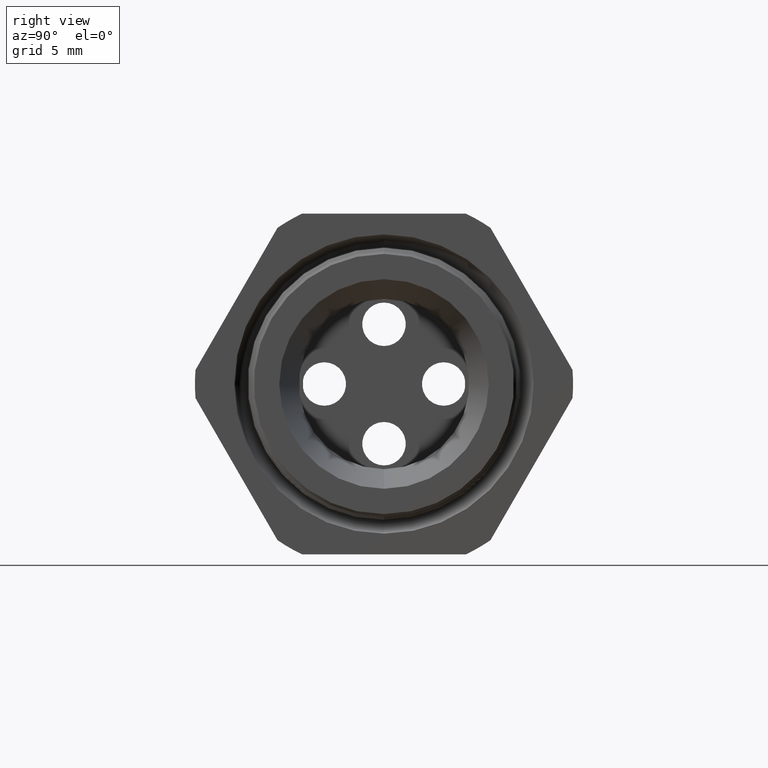
[diagram: clean part render]
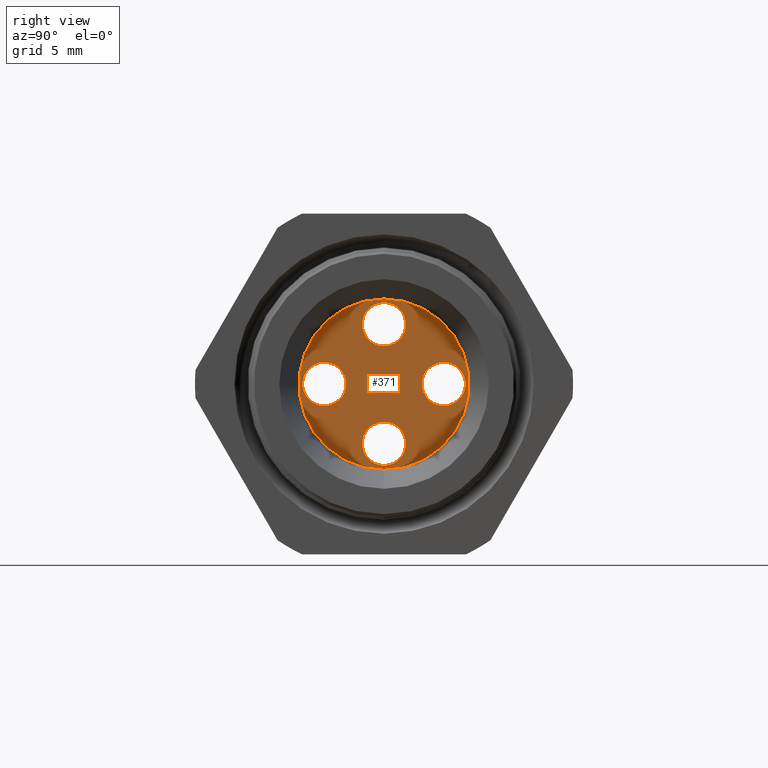
[diagram: same view with one face highlighted and labeled with its STEP entity id]
A machine part, right view. The second image highlights one B-rep face of the part: STEP entity #371.
In plain terms, the highlighted planar face has unit normal (-1, 0, 0).
Its self-contained STEP definition (entity closure, byte-faithful):
#358 = EDGE_CURVE ( 'NONE', #438, #445, #2435, .T. ) ;
#359 = ORIENTED_EDGE ( 'NONE', *, *, #466, .T. ) ;
#360 = EDGE_LOOP ( 'NONE', ( #361, #425 ) ) ;
#361 = ORIENTED_EDGE ( 'NONE', *, *, #424, .T. ) ;
#362 = ORIENTED_EDGE ( 'NONE', *, *, #367, .T. ) ;
#363 = ORIENTED_EDGE ( 'NONE', *, *, #514, .T. ) ;
#364 = EDGE_LOOP ( 'NONE', ( #431, #432 ) ) ;
#365 = ORIENTED_EDGE ( 'NONE', *, *, #366, .T. ) ;
#366 = EDGE_CURVE ( 'NONE', #435, #434, #2429, .T. ) ;
#367 = EDGE_CURVE ( 'NONE', #468, #467, #2490, .T. ) ;
#368 = ORIENTED_EDGE ( 'NONE', *, *, #358, .T. ) ;
#371 = ADVANCED_FACE ( 'NONE', ( #2481, #2480, #2479, #2478, #2477 ), #2476, .F. ) ;
#379 = EDGE_CURVE ( 'NONE', #393, #391, #2459, .T. ) ;
#388 = EDGE_CURVE ( 'NONE', #391, #393, #2511, .T. ) ;
#391 = VERTEX_POINT ( 'NONE', #2506 ) ;
#393 = VERTEX_POINT ( 'NONE', #2505 ) ;
#396 = EDGE_LOOP ( 'NONE', ( #368, #433 ) ) ;
#424 = EDGE_CURVE ( 'NONE', #506, #505, #2583, .T. ) ;
#425 = ORIENTED_EDGE ( 'NONE', *, *, #504, .T. ) ;
#426 = EDGE_LOOP ( 'NONE', ( #365, #363 ) ) ;
#430 = EDGE_LOOP ( 'NONE', ( #362, #359 ) ) ;
#431 = ORIENTED_EDGE ( 'NONE', *, *, #388, .F. ) ;
#432 = ORIENTED_EDGE ( 'NONE', *, *, #379, .F. ) ;
#433 = ORIENTED_EDGE ( 'NONE', *, *, #459, .T. ) ;
#434 = VERTEX_POINT ( 'NONE', #2571 ) ;
#435 = VERTEX_POINT ( 'NONE', #2570 ) ;
#438 = VERTEX_POINT ( 'NONE', #2568 ) ;
#445 = VERTEX_POINT ( 'NONE', #2557 ) ;
#459 = EDGE_CURVE ( 'NONE', #445, #438, #2595, .T. ) ;
#466 = EDGE_CURVE ( 'NONE', #467, #468, #2643, .T. ) ;
#467 = VERTEX_POINT ( 'NONE', #2638 ) ;
#468 = VERTEX_POINT ( 'NONE', #2637 ) ;
#504 = EDGE_CURVE ( 'NONE', #505, #506, #2694, .T. ) ;
#505 = VERTEX_POINT ( 'NONE', #2689 ) ;
#506 = VERTEX_POINT ( 'NONE', #2688 ) ;
#514 = EDGE_CURVE ( 'NONE', #434, #435, #2743, .T. ) ;
#1830 = DIRECTION ( 'NONE',  ( 0.0000000000000000000, -1.000000000000000000, 1.047445008332814800E-014 ) ) ;
#2427 = CARTESIAN_POINT ( 'NONE',  ( -1.159999999999999900, 0.0000000000000000000, -0.1647599999999999900 ) ) ;
#2428 = AXIS2_PLACEMENT_3D ( 'NONE', #2427, #2492, #2491 ) ;
#2429 = CIRCLE ( 'NONE', #2428, 0.06000000000000001200 ) ;
#2430 = CARTESIAN_POINT ( 'NONE',  ( -1.159999999999999900, 1.150513597152763700E-015, 0.1647599999999999900 ) ) ;
#2431 = DIRECTION ( 'NONE',  ( 0.0000000000000000000, -1.000000000000000000, 1.047445008332814800E-014 ) ) ;
#2432 = DIRECTION ( 'NONE',  ( -1.000000000000000000, 0.0000000000000000000, 0.0000000000000000000 ) ) ;
#2433 = CARTESIAN_POINT ( 'NONE',  ( -1.159999999999999900, 0.1647599999999999900, -1.725770395729145300E-015 ) ) ;
#2434 = AXIS2_PLACEMENT_3D ( 'NONE', #2433, #2432, #2431 ) ;
#2435 = CIRCLE ( 'NONE', #2434, 0.06000000000000001200 ) ;
#2459 = CIRCLE ( 'NONE', #2524, 0.2349999999999999900 ) ;
#2472 = DIRECTION ( 'NONE',  ( 0.0000000000000000000, 0.0000000000000000000, 1.000000000000000000 ) ) ;
#2473 = DIRECTION ( 'NONE',  ( -1.000000000000000000, 0.0000000000000000000, 0.0000000000000000000 ) ) ;
#2474 = CARTESIAN_POINT ( 'NONE',  ( -1.159999999999999900, 0.0000000000000000000, 0.0000000000000000000 ) ) ;
#2475 = AXIS2_PLACEMENT_3D ( 'NONE', #2474, #2473, #2472 ) ;
#2476 = PLANE ( 'NONE',  #2475 ) ;
#2477 = FACE_OUTER_BOUND ( 'NONE', #364, .T. ) ;
#2478 = FACE_BOUND ( 'NONE', #426, .T. ) ;
#2479 = FACE_BOUND ( 'NONE', #360, .T. ) ;
#2480 = FACE_BOUND ( 'NONE', #430, .T. ) ;
#2481 = FACE_BOUND ( 'NONE', #396, .T. ) ;
#2487 = DIRECTION ( 'NONE',  ( 0.0000000000000000000, -6.982966722218764900E-015, -1.000000000000000000 ) ) ;
#2488 = DIRECTION ( 'NONE',  ( -1.000000000000000000, 0.0000000000000000000, 0.0000000000000000000 ) ) ;
#2489 = AXIS2_PLACEMENT_3D ( 'NONE', #2430, #2488, #2487 ) ;
#2490 = CIRCLE ( 'NONE', #2489, 0.06000000000000001200 ) ;
#2491 = DIRECTION ( 'NONE',  ( 0.0000000000000000000, 0.0000000000000000000, 1.000000000000000000 ) ) ;
#2492 = DIRECTION ( 'NONE',  ( -1.000000000000000000, 0.0000000000000000000, 0.0000000000000000000 ) ) ;
#2505 = CARTESIAN_POINT ( 'NONE',  ( -1.159999999999999900, 2.877919977996279800E-017, -0.2349999999999999900 ) ) ;
#2506 = CARTESIAN_POINT ( 'NONE',  ( -1.159999999999999900, 0.0000000000000000000, 0.2349999999999999900 ) ) ;
#2507 = DIRECTION ( 'NONE',  ( 0.0000000000000000000, 0.0000000000000000000, 1.000000000000000000 ) ) ;
#2508 = DIRECTION ( 'NONE',  ( -1.000000000000000000, 0.0000000000000000000, 0.0000000000000000000 ) ) ;
#2509 = CARTESIAN_POINT ( 'NONE',  ( -1.159999999999999900, 0.0000000000000000000, 0.0000000000000000000 ) ) ;
#2510 = AXIS2_PLACEMENT_3D ( 'NONE', #2509, #2508, #2507 ) ;
#2511 = CIRCLE ( 'NONE', #2510, 0.2349999999999999900 ) ;
#2521 = DIRECTION ( 'NONE',  ( 0.0000000000000000000, 0.0000000000000000000, 1.000000000000000000 ) ) ;
#2522 = DIRECTION ( 'NONE',  ( -1.000000000000000000, 0.0000000000000000000, 0.0000000000000000000 ) ) ;
#2523 = CARTESIAN_POINT ( 'NONE',  ( -1.159999999999999900, 0.0000000000000000000, 0.0000000000000000000 ) ) ;
#2524 = AXIS2_PLACEMENT_3D ( 'NONE', #2523, #2522, #2521 ) ;
#2557 = CARTESIAN_POINT ( 'NONE',  ( -1.159999999999999900, 0.1647599999999999900, -0.06000000000000173900 ) ) ;
#2568 = CARTESIAN_POINT ( 'NONE',  ( -1.159999999999999900, 0.1647599999999999900, 0.05999999999999829100 ) ) ;
#2570 = CARTESIAN_POINT ( 'NONE',  ( -1.159999999999999900, 0.0000000000000000000, -0.1047599999999999800 ) ) ;
#2571 = CARTESIAN_POINT ( 'NONE',  ( -1.159999999999999900, 7.347880794884123000E-018, -0.2247600000000000400 ) ) ;
#2579 = DIRECTION ( 'NONE',  ( 0.0000000000000000000, 1.000000000000000000, -3.491483361109382500E-015 ) ) ;
#2580 = DIRECTION ( 'NONE',  ( -1.000000000000000000, 0.0000000000000000000, 0.0000000000000000000 ) ) ;
#2581 = CARTESIAN_POINT ( 'NONE',  ( -1.159999999999999900, -0.1647599999999999900, 5.752567985763818600E-016 ) ) ;
#2582 = AXIS2_PLACEMENT_3D ( 'NONE', #2581, #2580, #2579 ) ;
#2583 = CIRCLE ( 'NONE', #2582, 0.06000000000000001200 ) ;
#2592 = DIRECTION ( 'NONE',  ( -1.000000000000000000, 0.0000000000000000000, 0.0000000000000000000 ) ) ;
#2593 = CARTESIAN_POINT ( 'NONE',  ( -1.159999999999999900, 0.1647599999999999900, -1.725770395729145300E-015 ) ) ;
#2594 = AXIS2_PLACEMENT_3D ( 'NONE', #2593, #2592, #1830 ) ;
#2595 = CIRCLE ( 'NONE', #2594, 0.06000000000000001200 ) ;
#2637 = CARTESIAN_POINT ( 'NONE',  ( -1.159999999999999900, 1.150513597152763700E-015, 0.2247600000000000400 ) ) ;
#2638 = CARTESIAN_POINT ( 'NONE',  ( -1.159999999999999900, 1.157861477947647800E-015, 0.1047599999999999600 ) ) ;
#2639 = DIRECTION ( 'NONE',  ( 0.0000000000000000000, -6.982966722218764900E-015, -1.000000000000000000 ) ) ;
#2640 = DIRECTION ( 'NONE',  ( -1.000000000000000000, 0.0000000000000000000, 0.0000000000000000000 ) ) ;
#2641 = CARTESIAN_POINT ( 'NONE',  ( -1.159999999999999900, 1.150513597152763700E-015, 0.1647599999999999900 ) ) ;
#2642 = AXIS2_PLACEMENT_3D ( 'NONE', #2641, #2640, #2639 ) ;
#2643 = CIRCLE ( 'NONE', #2642, 0.06000000000000001200 ) ;
#2688 = CARTESIAN_POINT ( 'NONE',  ( -1.159999999999999900, -0.1647599999999999900, 0.06000000000000058800 ) ) ;
#2689 = CARTESIAN_POINT ( 'NONE',  ( -1.159999999999999900, -0.1647599999999999900, -0.05999999999999944300 ) ) ;
#2690 = DIRECTION ( 'NONE',  ( 0.0000000000000000000, 1.000000000000000000, -3.491483361109382500E-015 ) ) ;
#2691 = DIRECTION ( 'NONE',  ( -1.000000000000000000, 0.0000000000000000000, 0.0000000000000000000 ) ) ;
#2692 = CARTESIAN_POINT ( 'NONE',  ( -1.159999999999999900, -0.1647599999999999900, 5.752567985763818600E-016 ) ) ;
#2693 = AXIS2_PLACEMENT_3D ( 'NONE', #2692, #2691, #2690 ) ;
#2694 = CIRCLE ( 'NONE', #2693, 0.06000000000000001200 ) ;
#2739 = DIRECTION ( 'NONE',  ( 0.0000000000000000000, 0.0000000000000000000, 1.000000000000000000 ) ) ;
#2740 = DIRECTION ( 'NONE',  ( -1.000000000000000000, 0.0000000000000000000, 0.0000000000000000000 ) ) ;
#2741 = CARTESIAN_POINT ( 'NONE',  ( -1.159999999999999900, 0.0000000000000000000, -0.1647599999999999900 ) ) ;
#2742 = AXIS2_PLACEMENT_3D ( 'NONE', #2741, #2740, #2739 ) ;
#2743 = CIRCLE ( 'NONE', #2742, 0.06000000000000001200 ) ;